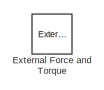
[diagram: root canvas - part 1/4, top left region]
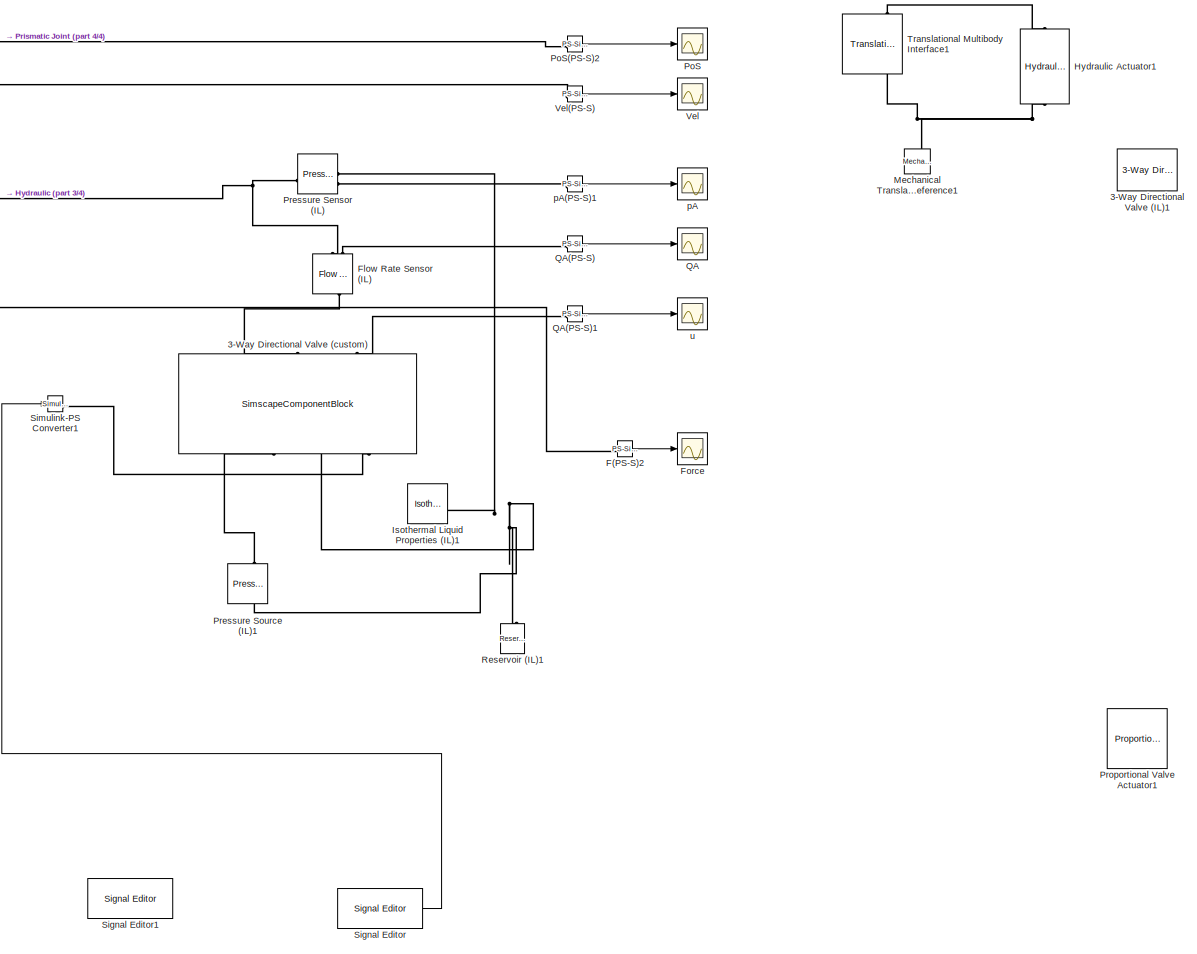
[diagram: root canvas - part 2/4, middle right region]
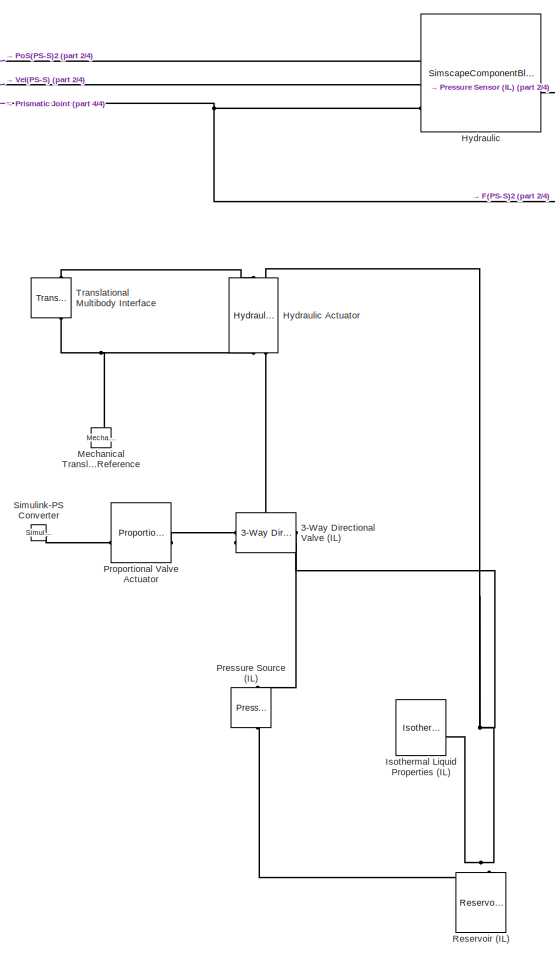
[diagram: root canvas - part 3/4, central region]
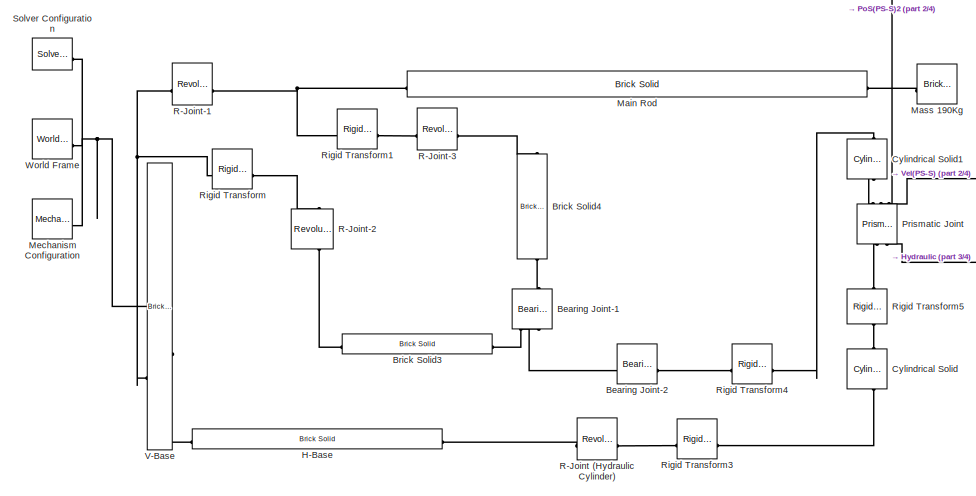
[diagram: root canvas - part 4/4, bottom left region]
MODEL slx_b9f4629adea8
KIND model
CONFIG AbsTol = 1e-3
CONFIG EnableMultiTasking = on
CONFIG FixedStep = auto
CONFIG MaxStep = auto
CONFIG MinStep = auto
CONFIG RelTol = 1e-3
CONFIG SampleTimeConstraint = Unconstrained
CONFIG SolverName = VariableStepAuto
CONFIG StartTime = 0.0
CONFIG StopTime = 1.5
BLOCK [Reference] 3-Way Directional Valve (IL)  REF=SimscapeFluids_lib/Isothermal Liquid/Valves & Orifices/Directional Control
Valves/3-Way Directional
Valve (IL)
  Commented = on
  NameLocation = right
  SourceBlock = SimscapeFluids_lib/Isothermal Liquid/Valves & Orifices/Directional Control\nValves/3-Way Directional\nValve (IL)
  SourceType = 3-Way Directional\nValve (IL)
BLOCK [Reference] 3-Way Directional Valve (IL)1  REF=SimscapeFluids_lib/Isothermal Liquid/Valves & Orifices/Directional Control
Valves/3-Way Directional
Valve (IL)
  Commented = on
  NameLocation = right
  SourceBlock = SimscapeFluids_lib/Isothermal Liquid/Valves & Orifices/Directional Control\nValves/3-Way Directional\nValve (IL)
  SourceType = 3-Way Directional\nValve (IL)
BLOCK [SimscapeComponentBlock] 3-Way Directional Valve (custom)
  ClassName = custom_component_D_vale
  ComponentPath = custom_component_D_vale
  ComponentVariantNames = ["custom_component_D_vale"]
  ComponentVariants = ["custom_component_D_vale"]
  CopyFcn = simscape.engine.sli.internal.componentblockcallback(gcbh,'COPY')
  Cv = 2.67e-9
  Cv_conf = compiletime
  Cv_unit = m^3/(Pa^(1/2)*V*s)
  InternalSimscapePortConfiguration = {"Bottom":[],"Left":[{"id":"P","label":"P","type":"foundation.isothermal_liquid.isothermal_liquid"},{"id":"T","label":"T","type":"foundation.isothermal_liquid.isothermal_liquid"},{"id":"Uin","label":"Uin","type":"input"}],"Right":[{"id":"A","label":"A","type":"foundation.isothermal_liquid.isothermal_liquid"},{"id":"U","label":"U","type":"output"}],"Top":[]}
  MaskType = This is .ssc file template for defining a custom simscape component block
  NameLocation = right
  PreCopyFcn = simscape.engine.sli.internal.componentblockcallback(gcbh,'PRECOPY')
  PreDeleteFcn = simscape.engine.sli.internal.componentblockcallback(gcbh,'PREDELETE')
  SchemaVersion = 1
  SourceFile = custom_component_D_vale
  Tau = 1e-4
  Tau_conf = compiletime
  Tau_unit = s
  mdot_AT = 0
  mdot_AT_nominal_specify = off
  mdot_AT_nominal_unit = kg/s
  mdot_AT_nominal_value = 1
  mdot_AT_priority = None
  mdot_AT_specify = off
  mdot_AT_unit = kg/s
  mdot_PA = 0
  mdot_PA_nominal_specify = off
  mdot_PA_nominal_unit = kg/s
  mdot_PA_nominal_value = 1
  mdot_PA_priority = None
  mdot_PA_specify = off
  mdot_PA_unit = kg/s
  p_AT = 0
  p_AT_nominal_specify = off
  p_AT_nominal_unit = Pa
  p_AT_nominal_value = 1
  p_AT_priority = None
  p_AT_specify = off
  p_AT_unit = Pa
  p_PA = 0
  p_PA_nominal_specify = off
  p_PA_nominal_unit = Pa
  p_PA_nominal_value = 1
  p_PA_priority = None
  p_PA_specify = off
  p_PA_unit = Pa
  rho = 850
  rho_conf = compiletime
  rho_unit = kg/m^3
BLOCK [Reference] Bearing Joint-1  REF=sm_lib/Joints/Bearing Joint
  NameLocation = right
  SourceBlock = sm_lib/Joints/Bearing Joint
  SourceType = Bearing Joint
BLOCK [Reference] Bearing Joint-2  REF=sm_lib/Joints/Bearing Joint
  SourceBlock = sm_lib/Joints/Bearing Joint
  SourceType = Bearing Joint
BLOCK [Reference] Brick Solid3  REF=sm_lib/Body Elements/Brick Solid
  SourceBlock = sm_lib/Body Elements/Brick Solid
  SourceType = Brick Solid
BLOCK [Reference] Brick Solid4  REF=sm_lib/Body Elements/Brick Solid
  NameLocation = right
  SourceBlock = sm_lib/Body Elements/Brick Solid
  SourceType = Brick Solid
BLOCK [Reference] Cylindrical Solid  REF=sm_lib/Body Elements/Cylindrical Solid
  NameLocation = right
  SourceBlock = sm_lib/Body Elements/Cylindrical Solid
  SourceType = Cylindrical Solid
BLOCK [Reference] Cylindrical Solid1  REF=sm_lib/Body Elements/Cylindrical Solid
  NameLocation = right
  SourceBlock = sm_lib/Body Elements/Cylindrical Solid
  SourceType = Cylindrical Solid
BLOCK [Reference] External Force and Torque  REF=sm_lib/Forces and
Torques/External Force
and Torque
  Commented = on
  SourceBlock = sm_lib/Forces and\nTorques/External Force\nand Torque
  SourceType = External Force\nand Torque
BLOCK [Reference] F(PS-S)2  REF=nesl_utility/PS-Simulink
Converter
  SourceBlock = nesl_utility/PS-Simulink\nConverter
  SourceType = PS-Simulink\nConverter
BLOCK [Reference] Flow Rate Sensor (IL)  REF=fl_lib/Isothermal Liquid/Sensors/Flow Rate Sensor
(IL)
  NameLocation = right
  SourceBlock = fl_lib/Isothermal Liquid/Sensors/Flow Rate Sensor\n(IL)
  SourceType = Flow Rate Sensor\n(IL)
BLOCK [Scope] Force
  Floating = off
  NumInputPorts = 1
  ScopeSpecificationString = Simulink.scopes.TimeScopeBlockCfg('CurrentConfiguration', extmgr.ConfigurationSet(extmgr.Configuration('Core','General UI',true),extmgr.Configuration('Core','Source UI',true),extmgr.Configuration('Sources','WiredSimulink',true,'DataLoggingVariableName','ScopeData1'),extmgr.Configuration('Visuals','Time Domain',true,'SerializedDisplays',{struct('MinYLimReal','5228.82235','MaxYLimReal','13964.65026'...<+1564ch>
BLOCK [Reference] H-Base  REF=sm_lib/Body Elements/Brick Solid
  SourceBlock = sm_lib/Body Elements/Brick Solid
  SourceType = Brick Solid
BLOCK [SimscapeComponentBlock] Hydraulic
  A1 = pi * (0.025 ^ 2)
  A1_conf = compiletime
  A1_unit = m^2
  Be = 900e6
  Be_conf = compiletime
  Be_unit = Pa
  ClassName = custom_Hydraulic
  ComponentPath = custom_Hydraulic
  ComponentVariantNames = ["custom_Hydraulic"]
  ComponentVariants = ["custom_Hydraulic"]
  CopyFcn = simscape.engine.sli.internal.componentblockcallback(gcbh,'COPY')
  InternalSimscapePortConfiguration = {"Bottom":[],"Left":[{"id":"x","label":"x","type":"input"},{"id":"xdot","label":"xd","type":"input"},{"id":"F","label":"F","type":"output"}],"Right":[{"id":"A","label":"A","type":"foundation.isothermal_liquid.isothermal_liquid"}],"Top":[]}
  MaskType = This is .ssc file template for defining a custom simscape component block
  PreCopyFcn = simscape.engine.sli.internal.componentblockcallback(gcbh,'PRECOPY')
  PreDeleteFcn = simscape.engine.sli.internal.componentblockcallback(gcbh,'PREDELETE')
  SchemaVersion = 1
  SourceFile = custom_Hydraulic
  V0 = 3.14e-4
  V0_conf = compiletime
  V0_unit = m^3
  mdotA = 0
  mdotA_nominal_specify = off
  mdotA_nominal_unit = kg/s
  mdotA_nominal_value = 1
  mdotA_priority = None
  mdotA_specify = off
  mdotA_unit = kg/s
  n = 0.9
  n_conf = compiletime
  n_unit = 1
  pA = 10e5
  pA_nominal_specify = off
  pA_nominal_unit = Pa
  pA_nominal_value = 1
  pA_priority = None
  pA_specify = on
  pA_unit = Pa
  rho = 850
  rho_conf = compiletime
  rho_unit = kg/m^3
BLOCK [Reference] Hydraulic Actuator  REF=Multibody_Multiphysics_Lib/Hydraulic/Hydraulic Actuator
  Commented = on
  NameLocation = right
  SourceBlock = Multibody_Multiphysics_Lib/Hydraulic/Hydraulic Actuator
  SourceProductName = Simscape Multibody Multiphysics Library
  SourceType = Double-Acting Hydraulic Cylinder, Kinematic Inputs
BLOCK [Reference] Hydraulic Actuator1  REF=Multibody_Multiphysics_Lib/Hydraulic/Hydraulic Actuator
  Commented = on
  NameLocation = right
  SourceBlock = Multibody_Multiphysics_Lib/Hydraulic/Hydraulic Actuator
  SourceProductName = Simscape Multibody Multiphysics Library
  SourceType = Double-Acting Hydraulic Cylinder, Kinematic Inputs
BLOCK [Reference] Isothermal Liquid Properties (IL)  REF=fl_lib/Isothermal Liquid/Utilities/Isothermal Liquid
Properties (IL)
  Commented = on
  SourceBlock = fl_lib/Isothermal Liquid/Utilities/Isothermal Liquid\nProperties (IL)
  SourceType = Isothermal Liquid\nProperties (IL)
BLOCK [Reference] Isothermal Liquid Properties (IL)1  REF=fl_lib/Isothermal Liquid/Utilities/Isothermal Liquid
Properties (IL)
  SourceBlock = fl_lib/Isothermal Liquid/Utilities/Isothermal Liquid\nProperties (IL)
  SourceType = Isothermal Liquid\nProperties (IL)
BLOCK [Reference] Main Rod  REF=sm_lib/Body Elements/Brick Solid
  SourceBlock = sm_lib/Body Elements/Brick Solid
  SourceType = Brick Solid
BLOCK [Reference] Mass 190Kg  REF=sm_lib/Body Elements/Brick Solid
  NameLocation = right
  SourceBlock = sm_lib/Body Elements/Brick Solid
  SourceType = Brick Solid
BLOCK [Reference] Mechanical Translational Reference  REF=fl_lib/Mechanical/Translational
Elements/Mechanical
Translational
Reference
  Commented = on
  NameLocation = right
  SourceBlock = fl_lib/Mechanical/Translational\nElements/Mechanical\nTranslational\nReference
  SourceType = Mechanical\nTranslational\nReference
BLOCK [Reference] Mechanical Translational Reference1  REF=fl_lib/Mechanical/Translational
Elements/Mechanical
Translational
Reference
  Commented = on
  NameLocation = right
  SourceBlock = fl_lib/Mechanical/Translational\nElements/Mechanical\nTranslational\nReference
  SourceType = Mechanical\nTranslational\nReference
BLOCK [Reference] Mechanism Configuration  REF=sm_lib/Utilities/Mechanism
Configuration
  SourceBlock = sm_lib/Utilities/Mechanism\nConfiguration
  SourceType = Mechanism\nConfiguration
BLOCK [Scope] PoS
  Floating = off
  NumInputPorts = 1
  ScopeSpecificationString = Simulink.scopes.TimeScopeBlockCfg('CurrentConfiguration', extmgr.ConfigurationSet(extmgr.Configuration('Core','General UI',true),extmgr.Configuration('Core','Source UI',true),extmgr.Configuration('Sources','WiredSimulink',true,'DataLoggingVariableName','ScopeData1'),extmgr.Configuration('Visuals','Time Domain',true,'SerializedDisplays',{struct('MinYLimReal','-0.00512','MaxYLimReal','0.03099','YLab...<+1458ch>
BLOCK [Reference] PoS(PS-S)2  REF=nesl_utility/PS-Simulink
Converter
  SourceBlock = nesl_utility/PS-Simulink\nConverter
  SourceType = PS-Simulink\nConverter
BLOCK [Reference] Pressure Sensor (IL)  REF=fl_lib/Isothermal Liquid/Sensors/Pressure Sensor (IL)
  SourceBlock = fl_lib/Isothermal Liquid/Sensors/Pressure Sensor (IL)
  SourceType = Pressure Sensor (IL)
BLOCK [Reference] Pressure Source (IL)  REF=fl_lib/Isothermal Liquid/Sources/Pressure Source (IL)
  Commented = on
  NameLocation = right
  SourceBlock = fl_lib/Isothermal Liquid/Sources/Pressure Source (IL)
  SourceType = Pressure Source (IL)
BLOCK [Reference] Pressure Source (IL)1  REF=fl_lib/Isothermal Liquid/Sources/Pressure Source (IL)
  NameLocation = right
  SourceBlock = fl_lib/Isothermal Liquid/Sources/Pressure Source (IL)
  SourceType = Pressure Source (IL)
BLOCK [Reference] Prismatic Joint  REF=sm_lib/Joints/Prismatic
Joint
  NameLocation = right
  SourceBlock = sm_lib/Joints/Prismatic\nJoint
  SourceType = Prismatic\nJoint
BLOCK [Reference] Proportional Valve Actuator  REF=SimscapeFluids_lib/Valve Actuators/Proportional Valve
Actuator
  Commented = on
  SourceBlock = SimscapeFluids_lib/Valve Actuators/Proportional Valve\nActuator
  SourceType = Proportional Valve\nActuator
BLOCK [Reference] Proportional Valve Actuator1  REF=SimscapeFluids_lib/Valve Actuators/Proportional Valve
Actuator
  Commented = on
  SourceBlock = SimscapeFluids_lib/Valve Actuators/Proportional Valve\nActuator
  SourceType = Proportional Valve\nActuator
BLOCK [Scope] QA
  Floating = off
  NumInputPorts = 1
  ScopeSpecificationString = Simulink.scopes.TimeScopeBlockCfg('CurrentConfiguration', extmgr.ConfigurationSet(extmgr.Configuration('Core','General UI',true),extmgr.Configuration('Core','Source UI',true),extmgr.Configuration('Sources','WiredSimulink',true,'DataLoggingVariableName','ScopeData2'),extmgr.Configuration('Visuals','Time Domain',true,'SerializedDisplays',{struct('MinYLimReal','-0.00001','MaxYLimReal','0.00012','YLab...<+1456ch>
BLOCK [Reference] QA(PS-S)  REF=nesl_utility/PS-Simulink
Converter
  SourceBlock = nesl_utility/PS-Simulink\nConverter
  SourceType = PS-Simulink\nConverter
BLOCK [Reference] QA(PS-S)1  REF=nesl_utility/PS-Simulink
Converter
  SourceBlock = nesl_utility/PS-Simulink\nConverter
  SourceType = PS-Simulink\nConverter
BLOCK [Reference] R-Joint (Hydraulic Cylinder)  REF=sm_lib/Joints/Revolute Joint
  SourceBlock = sm_lib/Joints/Revolute Joint
  SourceType = Revolute Joint
BLOCK [Reference] R-Joint-1  REF=sm_lib/Joints/Revolute Joint
  SourceBlock = sm_lib/Joints/Revolute Joint
  SourceType = Revolute Joint
BLOCK [Reference] R-Joint-2  REF=sm_lib/Joints/Revolute Joint
  NameLocation = right
  SourceBlock = sm_lib/Joints/Revolute Joint
  SourceType = Revolute Joint
BLOCK [Reference] R-Joint-3  REF=sm_lib/Joints/Revolute Joint
  SourceBlock = sm_lib/Joints/Revolute Joint
  SourceType = Revolute Joint
BLOCK [Reference] Reservoir (IL)  REF=fl_lib/Isothermal Liquid/Elements/Reservoir (IL)
  Commented = on
  NameLocation = top
  SourceBlock = fl_lib/Isothermal Liquid/Elements/Reservoir (IL)
  SourceType = Reservoir (IL)
BLOCK [Reference] Reservoir (IL)1  REF=fl_lib/Isothermal Liquid/Elements/Reservoir (IL)
  NameLocation = right
  SourceBlock = fl_lib/Isothermal Liquid/Elements/Reservoir (IL)
  SourceType = Reservoir (IL)
BLOCK [Reference] Rigid Transform  REF=sm_lib/Frames and
Transforms/Rigid
Transform
  SourceBlock = sm_lib/Frames and\nTransforms/Rigid\nTransform
  SourceType = Rigid\nTransform
BLOCK [Reference] Rigid Transform1  REF=sm_lib/Frames and
Transforms/Rigid
Transform
  SourceBlock = sm_lib/Frames and\nTransforms/Rigid\nTransform
  SourceType = Rigid\nTransform
BLOCK [Reference] Rigid Transform3  REF=sm_lib/Frames and
Transforms/Rigid
Transform
  SourceBlock = sm_lib/Frames and\nTransforms/Rigid\nTransform
  SourceType = Rigid\nTransform
BLOCK [Reference] Rigid Transform4  REF=sm_lib/Frames and
Transforms/Rigid
Transform
  SourceBlock = sm_lib/Frames and\nTransforms/Rigid\nTransform
  SourceType = Rigid\nTransform
BLOCK [Reference] Rigid Transform5  REF=sm_lib/Frames and
Transforms/Rigid
Transform
  NameLocation = right
  SourceBlock = sm_lib/Frames and\nTransforms/Rigid\nTransform
  SourceType = Rigid\nTransform
BLOCK [Reference] Signal Editor  REF=SignalEditorBlockLib/Signal Editor
  LibrarySourceBlock = simulink/Sources/Signal Editor
  SourceBlock = SignalEditorBlockLib/Signal Editor
  SourceType = SignalEditor
  UserDataPersistent = on
BLOCK [Reference] Signal Editor1  REF=SignalEditorBlockLib/Signal Editor
  Commented = on
  LibrarySourceBlock = simulink/Sources/Signal Editor
  SourceBlock = SignalEditorBlockLib/Signal Editor
  SourceType = SignalEditor
  UserDataPersistent = on
BLOCK [Reference] Simulink-PS Converter  REF=nesl_utility/Simulink-PS
Converter
  Commented = on
  SourceBlock = nesl_utility/Simulink-PS\nConverter
  SourceType = Simulink-PS\nConverter
BLOCK [Reference] Simulink-PS Converter1  REF=nesl_utility/Simulink-PS
Converter
  SourceBlock = nesl_utility/Simulink-PS\nConverter
  SourceType = Simulink-PS\nConverter
BLOCK [Reference] Solver Configuration  REF=nesl_utility/Solver
Configuration
  SourceBlock = nesl_utility/Solver\nConfiguration
  SourceType = Solver\nConfiguration
BLOCK [Reference] Translational Multibody Interface  REF=fl_lib/Mechanical/Multibody Interfaces/Translational
Multibody Interface
  Commented = on
  NameLocation = left
  SourceBlock = fl_lib/Mechanical/Multibody Interfaces/Translational\nMultibody Interface
  SourceType = Translational\nMultibody Interface
BLOCK [Reference] Translational Multibody Interface1  REF=fl_lib/Mechanical/Multibody Interfaces/Translational
Multibody Interface
  Commented = on
  NameLocation = right
  SourceBlock = fl_lib/Mechanical/Multibody Interfaces/Translational\nMultibody Interface
  SourceType = Translational\nMultibody Interface
BLOCK [Reference] V-Base  REF=sm_lib/Body Elements/Brick Solid
  SourceBlock = sm_lib/Body Elements/Brick Solid
  SourceType = Brick Solid
BLOCK [Scope] Vel
  Floating = off
  NumInputPorts = 1
  ScopeSpecificationString = Simulink.scopes.TimeScopeBlockCfg('CurrentConfiguration', extmgr.ConfigurationSet(extmgr.Configuration('Core','General UI',true),extmgr.Configuration('Core','Source UI',true),extmgr.Configuration('Sources','WiredSimulink',true,'DataLoggingVariableName','ScopeData3'),extmgr.Configuration('Visuals','Time Domain',true,'SerializedDisplays',{struct('MinYLimReal','-0.22239','MaxYLimReal','0.61624','YLab...<+1505ch>
BLOCK [Reference] Vel(PS-S)  REF=nesl_utility/PS-Simulink
Converter
  SourceBlock = nesl_utility/PS-Simulink\nConverter
  SourceType = PS-Simulink\nConverter
BLOCK [Reference] World Frame  REF=sm_lib/Frames and
Transforms/World Frame
  SourceBlock = sm_lib/Frames and\nTransforms/World Frame
  SourceType = World Frame
BLOCK [Scope] pA
  Floating = off
  NumInputPorts = 1
  ScopeSpecificationString = Simulink.scopes.TimeScopeBlockCfg('CurrentConfiguration', extmgr.ConfigurationSet(extmgr.Configuration('Core','General UI',true),extmgr.Configuration('Core','Source UI',true),extmgr.Configuration('Sources','WiredSimulink',true),extmgr.Configuration('Visuals','Time Domain',true,'SerializedDisplays',{struct('MinYLimReal','-39408698.94627','MaxYLimReal','35956884.35173','YLabelReal','','MinYLimMag','...<+1551ch>
BLOCK [Reference] pA(PS-S)1  REF=nesl_utility/PS-Simulink
Converter
  SourceBlock = nesl_utility/PS-Simulink\nConverter
  SourceType = PS-Simulink\nConverter
BLOCK [Scope] u
  Floating = off
  NumInputPorts = 1
  ScopeSpecificationString = Simulink.scopes.TimeScopeBlockCfg('CurrentConfiguration', extmgr.ConfigurationSet(extmgr.Configuration('Core','General UI',true),extmgr.Configuration('Core','Source UI',true),extmgr.Configuration('Sources','WiredSimulink',true,'DataLoggingVariableName','ScopeData1'),extmgr.Configuration('Visuals','Time Domain',true,'SerializedDisplays',{struct('MinYLimReal','-1.2502','MaxYLimReal','11.2518','YLabe...<+1455ch>
LINE F(PS-S)2:1 -> Force:1
LINE PoS(PS-S)2:1 -> PoS:1
LINE QA(PS-S)1:1 -> u:1
LINE QA(PS-S):1 -> QA:1
LINE Signal Editor:1 -> Simulink-PS Converter1:1
LINE Vel(PS-S):1 -> Vel:1
LINE pA(PS-S)1:1 -> pA:1
PLINE 3-Way Directional Valve (IL):LConn1 -- Proportional Valve Actuator:RConn1
PLINE 3-Way Directional Valve (IL):LConn2 -- Hydraulic Actuator:LConn2
PLINE 3-Way Directional Valve (IL):RConn1 -- Pressure Source (IL):RConn1
PNET net1: 3-Way Directional Valve (IL):RConn2 -- Hydraulic Actuator:RConn2 -- Isothermal Liquid Properties (IL):RConn1 -- Pressure Source (IL):LConn1 -- Reservoir (IL):LConn1
PLINE 3-Way Directional Valve (custom):LConn1 -- Pressure Source (IL)1:RConn1
PNET net2: 3-Way Directional Valve (custom):LConn2 -- Isothermal Liquid Properties (IL)1:RConn1 -- Pressure Sensor (IL):RConn1 -- Pressure Source (IL)1:LConn1 -- Reservoir (IL)1:LConn1
PLINE 3-Way Directional Valve (custom):LConn3 -- Simulink-PS Converter1:RConn1
PLINE 3-Way Directional Valve (custom):RConn1 -- Flow Rate Sensor (IL):LConn1
PLINE 3-Way Directional Valve (custom):RConn2 -- QA(PS-S)1:LConn1
PNET net3: Bearing Joint-1:LConn1 -- Bearing Joint-2:LConn1 -- Brick Solid3:RConn1
PLINE Bearing Joint-1:RConn1 -- Brick Solid4:RConn1
PLINE Bearing Joint-2:RConn1 -- Rigid Transform4:LConn1
PLINE Brick Solid3:LConn1 -- R-Joint-2:RConn1
PLINE Brick Solid4:LConn1 -- R-Joint-3:RConn1
PLINE Cylindrical Solid1:LConn1 -- Prismatic Joint:RConn1
PLINE Cylindrical Solid1:RConn1 -- Rigid Transform4:RConn1
PLINE Cylindrical Solid:LConn1 -- Rigid Transform3:RConn1
PLINE Cylindrical Solid:RConn1 -- Rigid Transform5:LConn1
PNET net4: F(PS-S)2:LConn1 -- Hydraulic:LConn3 -- Prismatic Joint:LConn2
PNET net5: Flow Rate Sensor (IL):RConn1 -- Hydraulic:RConn1 -- Pressure Sensor (IL):LConn1
PLINE Flow Rate Sensor (IL):RConn2 -- QA(PS-S):LConn1
PLINE H-Base:LConn1 -- V-Base:RConn1
PLINE H-Base:RConn1 -- R-Joint (Hydraulic Cylinder):LConn1
PNET net6: Hydraulic Actuator1:LConn1 -- Mechanical Translational Reference1:LConn1 -- Translational Multibody Interface1:LConn2
PLINE Hydraulic Actuator1:RConn1 -- Translational Multibody Interface1:RConn2
PNET net7: Hydraulic Actuator:LConn1 -- Mechanical Translational Reference:LConn1 -- Translational Multibody Interface:LConn2
PLINE Hydraulic Actuator:RConn1 -- Translational Multibody Interface:RConn2
PNET net8: Hydraulic:LConn1 -- PoS(PS-S)2:LConn1 -- Prismatic Joint:RConn2
PNET net9: Hydraulic:LConn2 -- Prismatic Joint:RConn3 -- Vel(PS-S):LConn1
PNET net10: Main Rod:LConn1 -- R-Joint-1:RConn1 -- Rigid Transform1:LConn1
PLINE Main Rod:RConn1 -- Mass 190Kg:RConn1
PNET net11: Mechanism Configuration:RConn1 -- Solver Configuration:RConn1 -- V-Base:LConn1 -- World Frame:RConn1
PLINE Pressure Sensor (IL):RConn2 -- pA(PS-S)1:LConn1
PLINE Prismatic Joint:LConn1 -- Rigid Transform5:RConn1
PLINE Proportional Valve Actuator:LConn1 -- Simulink-PS Converter:RConn1
PLINE R-Joint (Hydraulic Cylinder):RConn1 -- Rigid Transform3:LConn1
PNET net12: R-Joint-1:LConn1 -- Rigid Transform:LConn1 -- V-Base:LConn2
PLINE R-Joint-2:LConn1 -- Rigid Transform:RConn1
PLINE R-Joint-3:LConn1 -- Rigid Transform1:RConn1
note: PNET lines group multi-terminal physical nets as a canonical sorted terminal list (undirected conserving connections); 2-terminal nets keep the pairwise PLINE form
